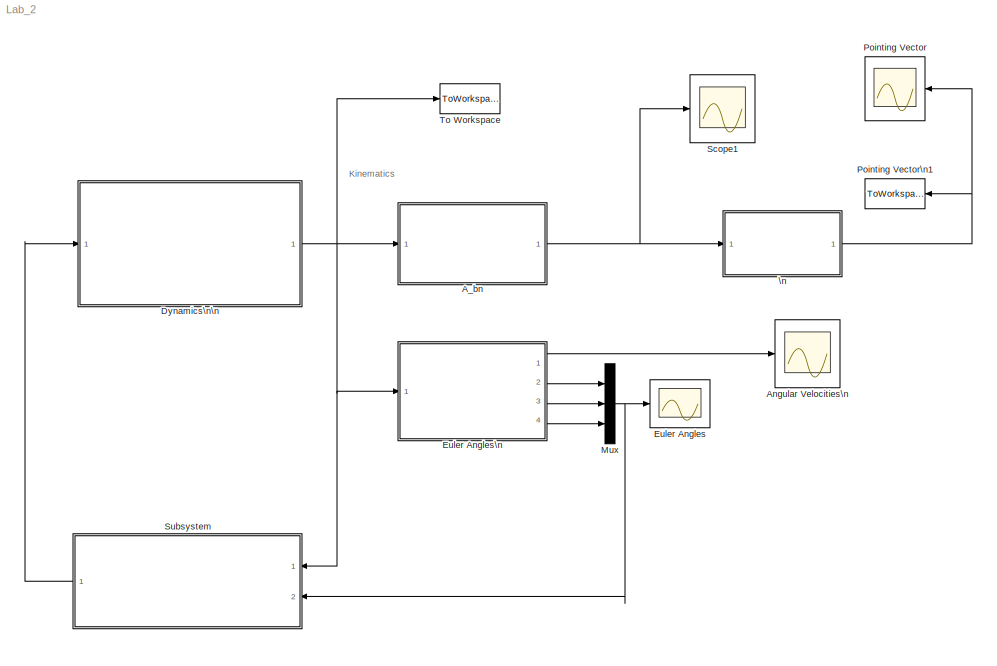
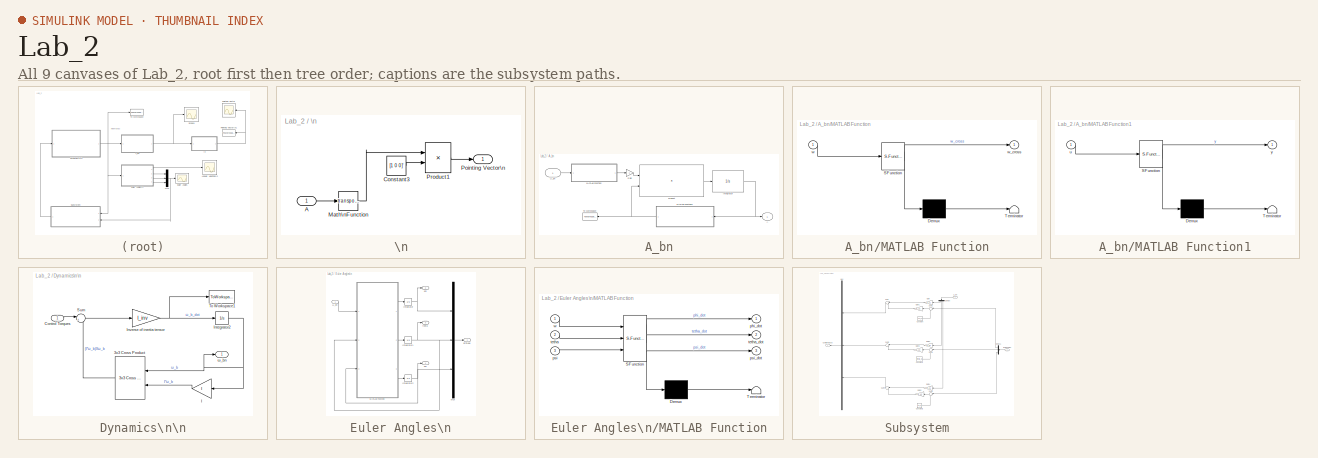
[diagram: thumbnail index - all 9 canvases of the model, root first then tree order]
MODEL Lab_2
KIND model
BLOCK [SubSystem] A_bn
  Ports = [1, 1]
  RequestExecContextInheritance = off
  SID = 252
BLOCK [Outport] A_bn/A
  IconDisplay = Port number
  SID = 271
BLOCK [Gain] A_bn/Gain
  Gain = -1
  OutDataTypeStr = Inherit: Inherit via internal rule
  ParamDataTypeStr = Inherit: Inherit via internal rule
  SID = 384
  SaturateOnIntegerOverflow = off
BLOCK [Integrator] A_bn/Integrator
  InitialCondition = DCM_0
  Ports = [1, 1]
  SID = 268
BLOCK [SubSystem] A_bn/MATLAB Function
  ErrorFcn = Stateflow.Translate.translate
  PermitHierarchicalResolution = ExplicitOnly
  Ports = [1, 1]
  RequestExecContextInheritance = off
  SFBlockType = MATLAB Function
  SID = 295
  TreatAsAtomicUnit = on
BLOCK [Demux] A_bn/MATLAB Function/ Demux 
  Outputs = 1
  Ports = [1, 1]
  SID = 295::20
BLOCK [S-Function] A_bn/MATLAB Function/ SFunction 
  EnableBusSupport = on
  FunctionName = sf_sfun
  PortCounts = [1 2]
  Ports = [1, 2]
  SFcnIsStateOwnerBlock = off
  SFunctionDeploymentMode = off
  SID = 295::19
  Tag = Stateflow S-Function Lab_2 3
BLOCK [Terminator] A_bn/MATLAB Function/ Terminator 
  SID = 295::21
BLOCK [Inport] A_bn/MATLAB Function/w
  IconDisplay = Port number
  SID = 295::1
BLOCK [Outport] A_bn/MATLAB Function/w_cross
  IconDisplay = Port number
  SID = 295::5
BLOCK [SubSystem] A_bn/MATLAB Function1
  ErrorFcn = Stateflow.Translate.translate
  PermitHierarchicalResolution = ExplicitOnly
  Ports = [1, 1]
  RequestExecContextInheritance = off
  SFBlockType = MATLAB Function
  SID = 269
  TreatAsAtomicUnit = on
BLOCK [Demux] A_bn/MATLAB Function1/ Demux 
  Outputs = 1
  Ports = [1, 1]
  SID = 269::23
BLOCK [S-Function] A_bn/MATLAB Function1/ SFunction 
  EnableBusSupport = on
  FunctionName = sf_sfun
  PortCounts = [1 2]
  Ports = [1, 2]
  SFcnIsStateOwnerBlock = off
  SFunctionDeploymentMode = off
  SID = 269::22
  Tag = Stateflow S-Function Lab_2 2
BLOCK [Terminator] A_bn/MATLAB Function1/ Terminator 
  SID = 269::24
BLOCK [Inport] A_bn/MATLAB Function1/u
  IconDisplay = Port number
  SID = 269::1
BLOCK [Outport] A_bn/MATLAB Function1/y
  IconDisplay = Port number
  SID = 269::5
BLOCK [Product] A_bn/Product
  InputSameDT = off
  Multiplication = Matrix(*)
  OutDataTypeStr = Inherit: Inherit via internal rule
  Ports = [2, 1]
  RndMeth = Floor
  SID = 270
  SaturateOnIntegerOverflow = off
BLOCK [ToWorkspace] A_bn/To Workspace
  FixptAsFi = on
  MaxDataPoints = inf
  Ports = [1]
  SID = 388
  SampleTime = -1
  Save2DSignal = 3-D array (concatenate along third dimension)
  VariableName = DCM
BLOCK [Inport] A_bn/ω_bn
  IconDisplay = Port number
  PortDimensions = 3
  SID = 253
  Unit = rad/s
BLOCK [Scope] Angular Velocities\n
  Floating = off
  NumInputPorts = 1
  Ports = [1]
  SID = 111
  ScopeSpecificationString = Simulink.scopes.TimeScopeBlockCfg('CurrentConfiguration', extmgr.ConfigurationSet(extmgr.Configuration('Core','General UI',true),extmgr.Configuration('Core','Source UI',true),extmgr.Configuration('Sources','WiredSimulink',true,'DataLoggingVariableName','ScopeData3'),extmgr.Configuration('Visuals','Time Domain',true,'SerializedDisplays',{struct('MinYLimReal','-196.86953','MaxYLimReal','1770.41278',...<+1550ch>
BLOCK [SubSystem] Dynamics\n\n
  Ports = [1, 1]
  RequestExecContextInheritance = off
  SID = 1
BLOCK [Reference] Dynamics\n\n/3x3 Cross Product  REF=sharedutil/3x3 Cross Product
  Ports = [2, 1]
  SID = 290
  SourceBlock = sharedutil/3x3 Cross Product
  SourceProductBaseCode = AE
  SourceProductName = Aerospace Blockset
  SourceType = CrossProduct
  aMode = aMode
BLOCK [Inport] Dynamics\n\n/Control Torques
  IconDisplay = Port number
  SID = 413
BLOCK [Gain] Dynamics\n\n/I
  Gain = I
  Multiplication = Matrix(K*u)
  OutDataTypeStr = Inherit: Inherit via internal rule
  ParamDataTypeStr = Inherit: Inherit via internal rule
  SID = 291
  SaturateOnIntegerOverflow = off
BLOCK [Integrator] Dynamics\n\n/Integrator2
  InitialCondition = w_0
  Ports = [1, 1]
  SID = 292
BLOCK [Gain] Dynamics\n\n/Inverse of inertia tensor
  Gain = I_inv
  Multiplication = Matrix(K*u)
  OutDataTypeStr = Inherit: Inherit via internal rule
  ParamDataTypeStr = Inherit: Inherit via internal rule
  SID = 293
  SaturateOnIntegerOverflow = off
BLOCK [Sum] Dynamics\n\n/Sum
  IconShape = round
  InputSameDT = off
  Inputs = |+-
  OutDataTypeStr = Inherit: Inherit via internal rule
  Ports = [2, 1]
  SID = 414
  SaturateOnIntegerOverflow = off
BLOCK [ToWorkspace] Dynamics\n\n/To Workspace1
  FixptAsFi = on
  MaxDataPoints = inf
  Ports = [1]
  SID = 387
  SampleTime = -1
  Save2DSignal = 3-D array (concatenate along third dimension)
  VariableName = w_dot
BLOCK [Outport] Dynamics\n\n/ω_bn
  IconDisplay = Port number
  SID = 186
BLOCK [Scope] Euler Angles
  Floating = off
  NumInputPorts = 1
  Ports = [1]
  SID = 383
  ScopeSpecificationString = Simulink.scopes.TimeScopeBlockCfg('CurrentConfiguration', extmgr.ConfigurationSet(extmgr.Configuration('Core','General UI',true),extmgr.Configuration('Core','Source UI',true),extmgr.Configuration('Sources','WiredSimulink',true,'DataLoggingVariableName','ScopeData1'),extmgr.Configuration('Visuals','Time Domain',true,'SerializedDisplays',{struct('MinYLimReal','-196.86953','MaxYLimReal','1770.41278',...<+1544ch>
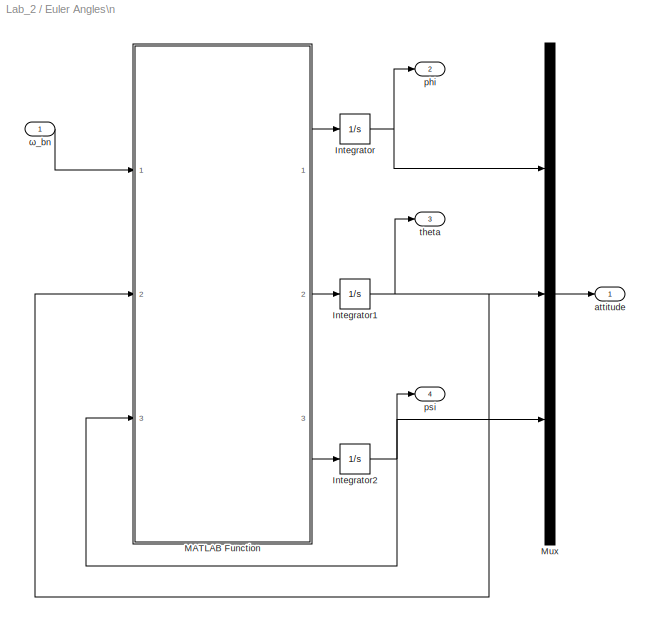
BLOCK [SubSystem] Euler Angles\n
  Ports = [1, 4]
  RequestExecContextInheritance = off
  SID = 272
BLOCK [Integrator] Euler Angles\n/Integrator
  InitialCondition = phi_0
  Ports = [1, 1]
  SID = 275
BLOCK [Integrator] Euler Angles\n/Integrator1
  InitialCondition = theta_0
  Ports = [1, 1]
  SID = 276
BLOCK [Integrator] Euler Angles\n/Integrator2
  InitialCondition = psi_0
  Ports = [1, 1]
  SID = 277
BLOCK [SubSystem] Euler Angles\n/MATLAB Function
  ErrorFcn = Stateflow.Translate.translate
  PermitHierarchicalResolution = ExplicitOnly
  Ports = [3, 3]
  RequestExecContextInheritance = off
  SFBlockType = MATLAB Function
  SID = 278
  TreatAsAtomicUnit = on
BLOCK [Demux] Euler Angles\n/MATLAB Function/ Demux 
  Outputs = 1
  Ports = [1, 1]
  SID = 278::31
BLOCK [S-Function] Euler Angles\n/MATLAB Function/ SFunction 
  EnableBusSupport = on
  FunctionName = sf_sfun
  PortCounts = [3 4]
  Ports = [3, 4]
  SFcnIsStateOwnerBlock = off
  SFunctionDeploymentMode = off
  SID = 278::30
  Tag = Stateflow S-Function Lab_2 1
BLOCK [Terminator] Euler Angles\n/MATLAB Function/ Terminator 
  SID = 278::32
BLOCK [Outport] Euler Angles\n/MATLAB Function/phi_dot
  IconDisplay = Port number
  SID = 278::25
BLOCK [Inport] Euler Angles\n/MATLAB Function/psi
  IconDisplay = Port number
  Port = 3
  SID = 278::29
BLOCK [Outport] Euler Angles\n/MATLAB Function/psi_dot
  IconDisplay = Port number
  Port = 3
  SID = 278::27
BLOCK [Inport] Euler Angles\n/MATLAB Function/tetha
  IconDisplay = Port number
  Port = 2
  SID = 278::28
BLOCK [Outport] Euler Angles\n/MATLAB Function/tetha_dot
  IconDisplay = Port number
  Port = 2
  SID = 278::26
BLOCK [Inport] Euler Angles\n/MATLAB Function/w
  IconDisplay = Port number
  SID = 278::1
BLOCK [Mux] Euler Angles\n/Mux
  DisplayOption = bar
  Inputs = 3
  Ports = [3, 1]
  SID = 279
BLOCK [Outport] Euler Angles\n/attitude
  IconDisplay = Port number
  SID = 280
BLOCK [Outport] Euler Angles\n/phi
  IconDisplay = Port number
  Port = 2
  SID = 367
BLOCK [Outport] Euler Angles\n/psi
  IconDisplay = Port number
  Port = 4
  SID = 369
BLOCK [Outport] Euler Angles\n/theta
  IconDisplay = Port number
  Port = 3
  SID = 368
BLOCK [Inport] Euler Angles\n/ω_bn
  IconDisplay = Port number
  SID = 273
BLOCK [Mux] Mux
  DisplayOption = bar
  Inputs = 3
  Ports = [3, 1]
  SID = 382
BLOCK [Scope] Pointing Vector
  Floating = off
  NumInputPorts = 1
  Ports = [1]
  SID = 288
  ScopeSpecificationString = Simulink.scopes.TimeScopeBlockCfg('CurrentConfiguration', extmgr.ConfigurationSet(extmgr.Configuration('Core','General UI',true),extmgr.Configuration('Core','Source UI',true),extmgr.Configuration('Sources','WiredSimulink',true,'DataLoggingVariableName','ScopeData1'),extmgr.Configuration('Visuals','Time Domain',true,'SerializedDisplays',{struct('MinYLimReal','-1.21878','MaxYLimReal','1.24653','YLab...<+1443ch>
BLOCK [ToWorkspace] Pointing Vector\n1
  MaxDataPoints = inf
  Ports = [1]
  SID = 289
  SampleTime = -1
  Save2DSignal = 3-D array (concatenate along third dimension)
  VariableName = X_P
BLOCK [Scope] Scope1
  Floating = off
  NumInputPorts = 1
  Ports = [1]
  SID = 79
  ScopeSpecificationString = Simulink.scopes.TimeScopeBlockCfg('CurrentConfiguration', extmgr.ConfigurationSet(extmgr.Configuration('Core','General UI',true),extmgr.Configuration('Core','Source UI',true),extmgr.Configuration('Sources','WiredSimulink',true,'DataLoggingVariableName','ScopeData1'),extmgr.Configuration('Visuals','Time Domain',true,'SerializedDisplays',{struct('MinYLimReal','-1.25','MaxYLimReal','1.25','YLabelReal...<+1437ch>
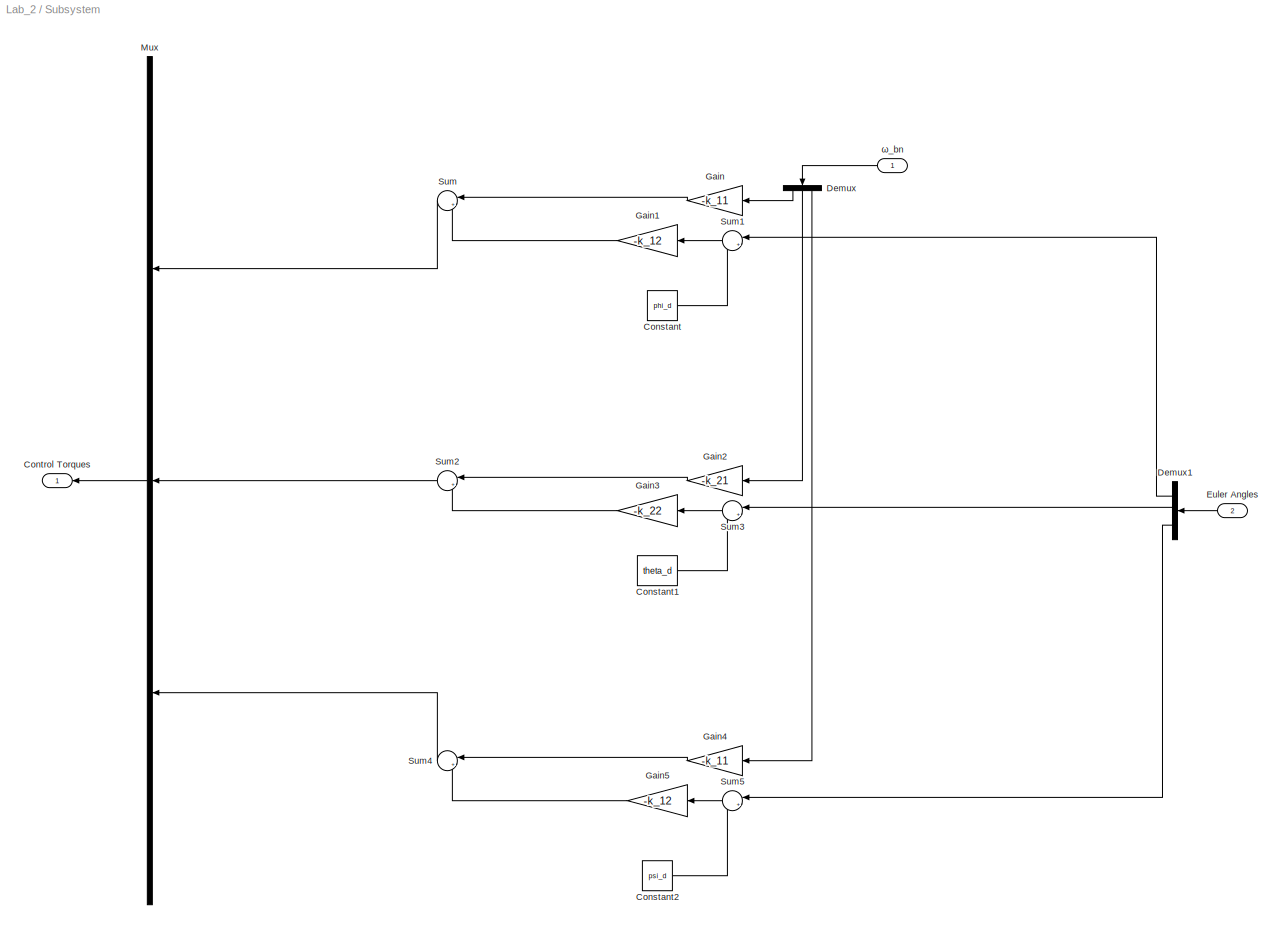
BLOCK [SubSystem] Subsystem
  Ports = [2, 1]
  RequestExecContextInheritance = off
  SID = 406
BLOCK [Constant] Subsystem/Constant
  SID = 394
  Value = phi_d
BLOCK [Constant] Subsystem/Constant1
  SID = 396
  Value = theta_d
BLOCK [Constant] Subsystem/Constant2
  SID = 401
  Value = psi_d
BLOCK [Outport] Subsystem/Control Torques
  IconDisplay = Port number
  SID = 409
BLOCK [Demux] Subsystem/Demux
  DisplayOption = bar
  Outputs = 3
  Ports = [1, 3]
  SID = 392
BLOCK [Demux] Subsystem/Demux1
  DisplayOption = bar
  Outputs = 3
  Ports = [1, 3]
  SID = 395
BLOCK [Inport] Subsystem/Euler Angles
  IconDisplay = Port number
  Port = 2
  SID = 408
BLOCK [Gain] Subsystem/Gain
  Gain = -k_11
  OutDataTypeStr = Inherit: Inherit via internal rule
  ParamDataTypeStr = Inherit: Inherit via internal rule
  SID = 389
  SaturateOnIntegerOverflow = off
BLOCK [Gain] Subsystem/Gain1
  Gain = -k_12
  OutDataTypeStr = Inherit: Inherit via internal rule
  ParamDataTypeStr = Inherit: Inherit via internal rule
  SID = 391
  SaturateOnIntegerOverflow = off
BLOCK [Gain] Subsystem/Gain2
  Gain = -k_21
  OutDataTypeStr = Inherit: Inherit via internal rule
  ParamDataTypeStr = Inherit: Inherit via internal rule
  SID = 397
  SaturateOnIntegerOverflow = off
BLOCK [Gain] Subsystem/Gain3
  Gain = -k_22
  OutDataTypeStr = Inherit: Inherit via internal rule
  ParamDataTypeStr = Inherit: Inherit via internal rule
  SID = 398
  SaturateOnIntegerOverflow = off
BLOCK [Gain] Subsystem/Gain4
  Gain = -k_11
  OutDataTypeStr = Inherit: Inherit via internal rule
  ParamDataTypeStr = Inherit: Inherit via internal rule
  SID = 402
  SaturateOnIntegerOverflow = off
BLOCK [Gain] Subsystem/Gain5
  Gain = -k_12
  OutDataTypeStr = Inherit: Inherit via internal rule
  ParamDataTypeStr = Inherit: Inherit via internal rule
  SID = 403
  SaturateOnIntegerOverflow = off
BLOCK [Mux] Subsystem/Mux
  DisplayOption = bar
  Inputs = 3
  Ports = [3, 1]
  SID = 412
BLOCK [Sum] Subsystem/Sum
  IconShape = round
  InputSameDT = off
  Inputs = |++
  OutDataTypeStr = Inherit: Inherit via internal rule
  Ports = [2, 1]
  SID = 390
  SaturateOnIntegerOverflow = off
BLOCK [Sum] Subsystem/Sum1
  IconShape = round
  InputSameDT = off
  Inputs = |+-
  OutDataTypeStr = Inherit: Inherit via internal rule
  Ports = [2, 1]
  SID = 393
  SaturateOnIntegerOverflow = off
BLOCK [Sum] Subsystem/Sum2
  IconShape = round
  InputSameDT = off
  Inputs = |++
  OutDataTypeStr = Inherit: Inherit via internal rule
  Ports = [2, 1]
  SID = 399
  SaturateOnIntegerOverflow = off
BLOCK [Sum] Subsystem/Sum3
  IconShape = round
  InputSameDT = off
  Inputs = |+-
  OutDataTypeStr = Inherit: Inherit via internal rule
  Ports = [2, 1]
  SID = 400
  SaturateOnIntegerOverflow = off
BLOCK [Sum] Subsystem/Sum4
  IconShape = round
  InputSameDT = off
  Inputs = |++
  OutDataTypeStr = Inherit: Inherit via internal rule
  Ports = [2, 1]
  SID = 404
  SaturateOnIntegerOverflow = off
BLOCK [Sum] Subsystem/Sum5
  IconShape = round
  InputSameDT = off
  Inputs = |+-
  OutDataTypeStr = Inherit: Inherit via internal rule
  Ports = [2, 1]
  SID = 405
  SaturateOnIntegerOverflow = off
BLOCK [Inport] Subsystem/ω_bn
  IconDisplay = Port number
  SID = 407
BLOCK [ToWorkspace] To Workspace
  FixptAsFi = on
  MaxDataPoints = inf
  Ports = [1]
  SID = 385
  SampleTime = -1
  Save2DSignal = 3-D array (concatenate along third dimension)
  VariableName = w_bn
BLOCK [SubSystem] \n
  Ports = [1, 1]
  RequestExecContextInheritance = off
  SID = 281
BLOCK [Inport] \n/A
  IconDisplay = Port number
  SID = 282
BLOCK [Constant] \n/Constant3
  SID = 283
  Value = [1 0 0]'
  VectorParams1D = off
BLOCK [Math] \n/Math\nFunction
  Operator = transpose
  Ports = [1, 1]
  SID = 284
BLOCK [Outport] \n/Pointing Vector\n
  IconDisplay = Port number
  SID = 286
BLOCK [Product] \n/Product1
  InputSameDT = off
  Multiplication = Matrix(*)
  OutDataTypeStr = Inherit: Inherit via internal rule
  Ports = [2, 1]
  RndMeth = Floor
  SID = 285
  SaturateOnIntegerOverflow = off
ANNOTATION (root): Kinematics
LINE A_bn/Gain:1 -> A_bn/Product:1
NET A_bn/Integrator:1 -> A_bn/A:1, A_bn/MATLAB Function1:1
LINE A_bn/MATLAB Function/ Demux :1 -> A_bn/MATLAB Function/ Terminator :1
LINE A_bn/MATLAB Function/ SFunction :1 -> A_bn/MATLAB Function/ Demux :1
LINE A_bn/MATLAB Function/ SFunction :2 -> A_bn/MATLAB Function/w_cross:1
LINE A_bn/MATLAB Function/w:1 -> A_bn/MATLAB Function/ SFunction :1
LINE A_bn/MATLAB Function1/ Demux :1 -> A_bn/MATLAB Function1/ Terminator :1
LINE A_bn/MATLAB Function1/ SFunction :1 -> A_bn/MATLAB Function1/ Demux :1
LINE A_bn/MATLAB Function1/ SFunction :2 -> A_bn/MATLAB Function1/y:1
LINE A_bn/MATLAB Function1/u:1 -> A_bn/MATLAB Function1/ SFunction :1
NET A_bn/MATLAB Function1:1 -> A_bn/Product:2, A_bn/To Workspace:1
LINE A_bn/MATLAB Function:1 -> A_bn/Gain:1
LINE A_bn/Product:1 -> A_bn/Integrator:1
LINE A_bn/ω_bn:1 -> A_bn/MATLAB Function:1
NET A_bn:1 -> Scope1:1, \n:1
LINE Dynamics\n\n/3x3 Cross Product:1 -> Dynamics\n\n/Sum:2
LINE Dynamics\n\n/Control Torques:1 -> Dynamics\n\n/Sum:1
LINE Dynamics\n\n/I:1 -> Dynamics\n\n/3x3 Cross Product:2
NET Dynamics\n\n/Integrator2:1 -> Dynamics\n\n/3x3 Cross Product:1, Dynamics\n\n/I:1, Dynamics\n\n/ω_bn:1
NET Dynamics\n\n/Inverse of inertia tensor:1 -> Dynamics\n\n/Integrator2:1, Dynamics\n\n/To Workspace1:1
LINE Dynamics\n\n/Sum:1 -> Dynamics\n\n/Inverse of inertia tensor:1
NET Dynamics\n\n:1 -> A_bn:1, Euler Angles\n:1, Subsystem:1, To Workspace:1
NET Euler Angles\n/Integrator1:1 -> Euler Angles\n/MATLAB Function:2, Euler Angles\n/Mux:2, Euler Angles\n/theta:1
NET Euler Angles\n/Integrator2:1 -> Euler Angles\n/MATLAB Function:3, Euler Angles\n/Mux:3, Euler Angles\n/psi:1
NET Euler Angles\n/Integrator:1 -> Euler Angles\n/Mux:1, Euler Angles\n/phi:1
LINE Euler Angles\n/MATLAB Function/ Demux :1 -> Euler Angles\n/MATLAB Function/ Terminator :1
LINE Euler Angles\n/MATLAB Function/ SFunction :1 -> Euler Angles\n/MATLAB Function/ Demux :1
LINE Euler Angles\n/MATLAB Function/ SFunction :2 -> Euler Angles\n/MATLAB Function/phi_dot:1
LINE Euler Angles\n/MATLAB Function/ SFunction :3 -> Euler Angles\n/MATLAB Function/tetha_dot:1
LINE Euler Angles\n/MATLAB Function/ SFunction :4 -> Euler Angles\n/MATLAB Function/psi_dot:1
LINE Euler Angles\n/MATLAB Function/psi:1 -> Euler Angles\n/MATLAB Function/ SFunction :3
LINE Euler Angles\n/MATLAB Function/tetha:1 -> Euler Angles\n/MATLAB Function/ SFunction :2
LINE Euler Angles\n/MATLAB Function/w:1 -> Euler Angles\n/MATLAB Function/ SFunction :1
LINE Euler Angles\n/MATLAB Function:1 -> Euler Angles\n/Integrator:1
LINE Euler Angles\n/MATLAB Function:2 -> Euler Angles\n/Integrator1:1
LINE Euler Angles\n/MATLAB Function:3 -> Euler Angles\n/Integrator2:1
LINE Euler Angles\n/Mux:1 -> Euler Angles\n/attitude:1
LINE Euler Angles\n/ω_bn:1 -> Euler Angles\n/MATLAB Function:1
LINE Euler Angles\n:1 -> Angular Velocities\n:1
LINE Euler Angles\n:2 -> Mux:1
LINE Euler Angles\n:3 -> Mux:2
LINE Euler Angles\n:4 -> Mux:3
NET Mux:1 -> Euler Angles:1, Subsystem:2
LINE Subsystem/Constant1:1 -> Subsystem/Sum3:2
LINE Subsystem/Constant2:1 -> Subsystem/Sum5:2
LINE Subsystem/Constant:1 -> Subsystem/Sum1:2
LINE Subsystem/Demux1:1 -> Subsystem/Sum1:1
LINE Subsystem/Demux1:2 -> Subsystem/Sum3:1
LINE Subsystem/Demux1:3 -> Subsystem/Sum5:1
LINE Subsystem/Demux:1 -> Subsystem/Gain:1
LINE Subsystem/Demux:2 -> Subsystem/Gain2:1
LINE Subsystem/Demux:3 -> Subsystem/Gain4:1
LINE Subsystem/Euler Angles:1 -> Subsystem/Demux1:1
LINE Subsystem/Gain1:1 -> Subsystem/Sum:2
LINE Subsystem/Gain2:1 -> Subsystem/Sum2:1
LINE Subsystem/Gain3:1 -> Subsystem/Sum2:2
LINE Subsystem/Gain4:1 -> Subsystem/Sum4:1
LINE Subsystem/Gain5:1 -> Subsystem/Sum4:2
LINE Subsystem/Gain:1 -> Subsystem/Sum:1
LINE Subsystem/Mux:1 -> Subsystem/Control Torques:1
LINE Subsystem/Sum1:1 -> Subsystem/Gain1:1
LINE Subsystem/Sum2:1 -> Subsystem/Mux:2
LINE Subsystem/Sum3:1 -> Subsystem/Gain3:1
LINE Subsystem/Sum4:1 -> Subsystem/Mux:3
LINE Subsystem/Sum5:1 -> Subsystem/Gain5:1
LINE Subsystem/Sum:1 -> Subsystem/Mux:1
LINE Subsystem/ω_bn:1 -> Subsystem/Demux:1
LINE Subsystem:1 -> Dynamics\n\n:1
LINE \n/A:1 -> \n/Math\nFunction:1
LINE \n/Constant3:1 -> \n/Product1:2
LINE \n/Math\nFunction:1 -> \n/Product1:1
LINE \n/Product1:1 -> \n/Pointing Vector\n:1
NET \n:1 -> Pointing Vector:1, Pointing Vector\n1:1
note: NET lines group one-source signal fan-out (src -> all destinations, sorted); 1:1 wires keep LINE
CHART Euler Angles\n/MATLAB Function states=1 transitions=1
  STATE_LABEL 'eML_blk_kernel()'
CHART A_bn/MATLAB Function1 states=1 transitions=1
  STATE_LABEL 'eML_blk_kernel()'
CHART A_bn/MATLAB Function states=1 transitions=1
  STATE_LABEL 'eML_blk_kernel()'
